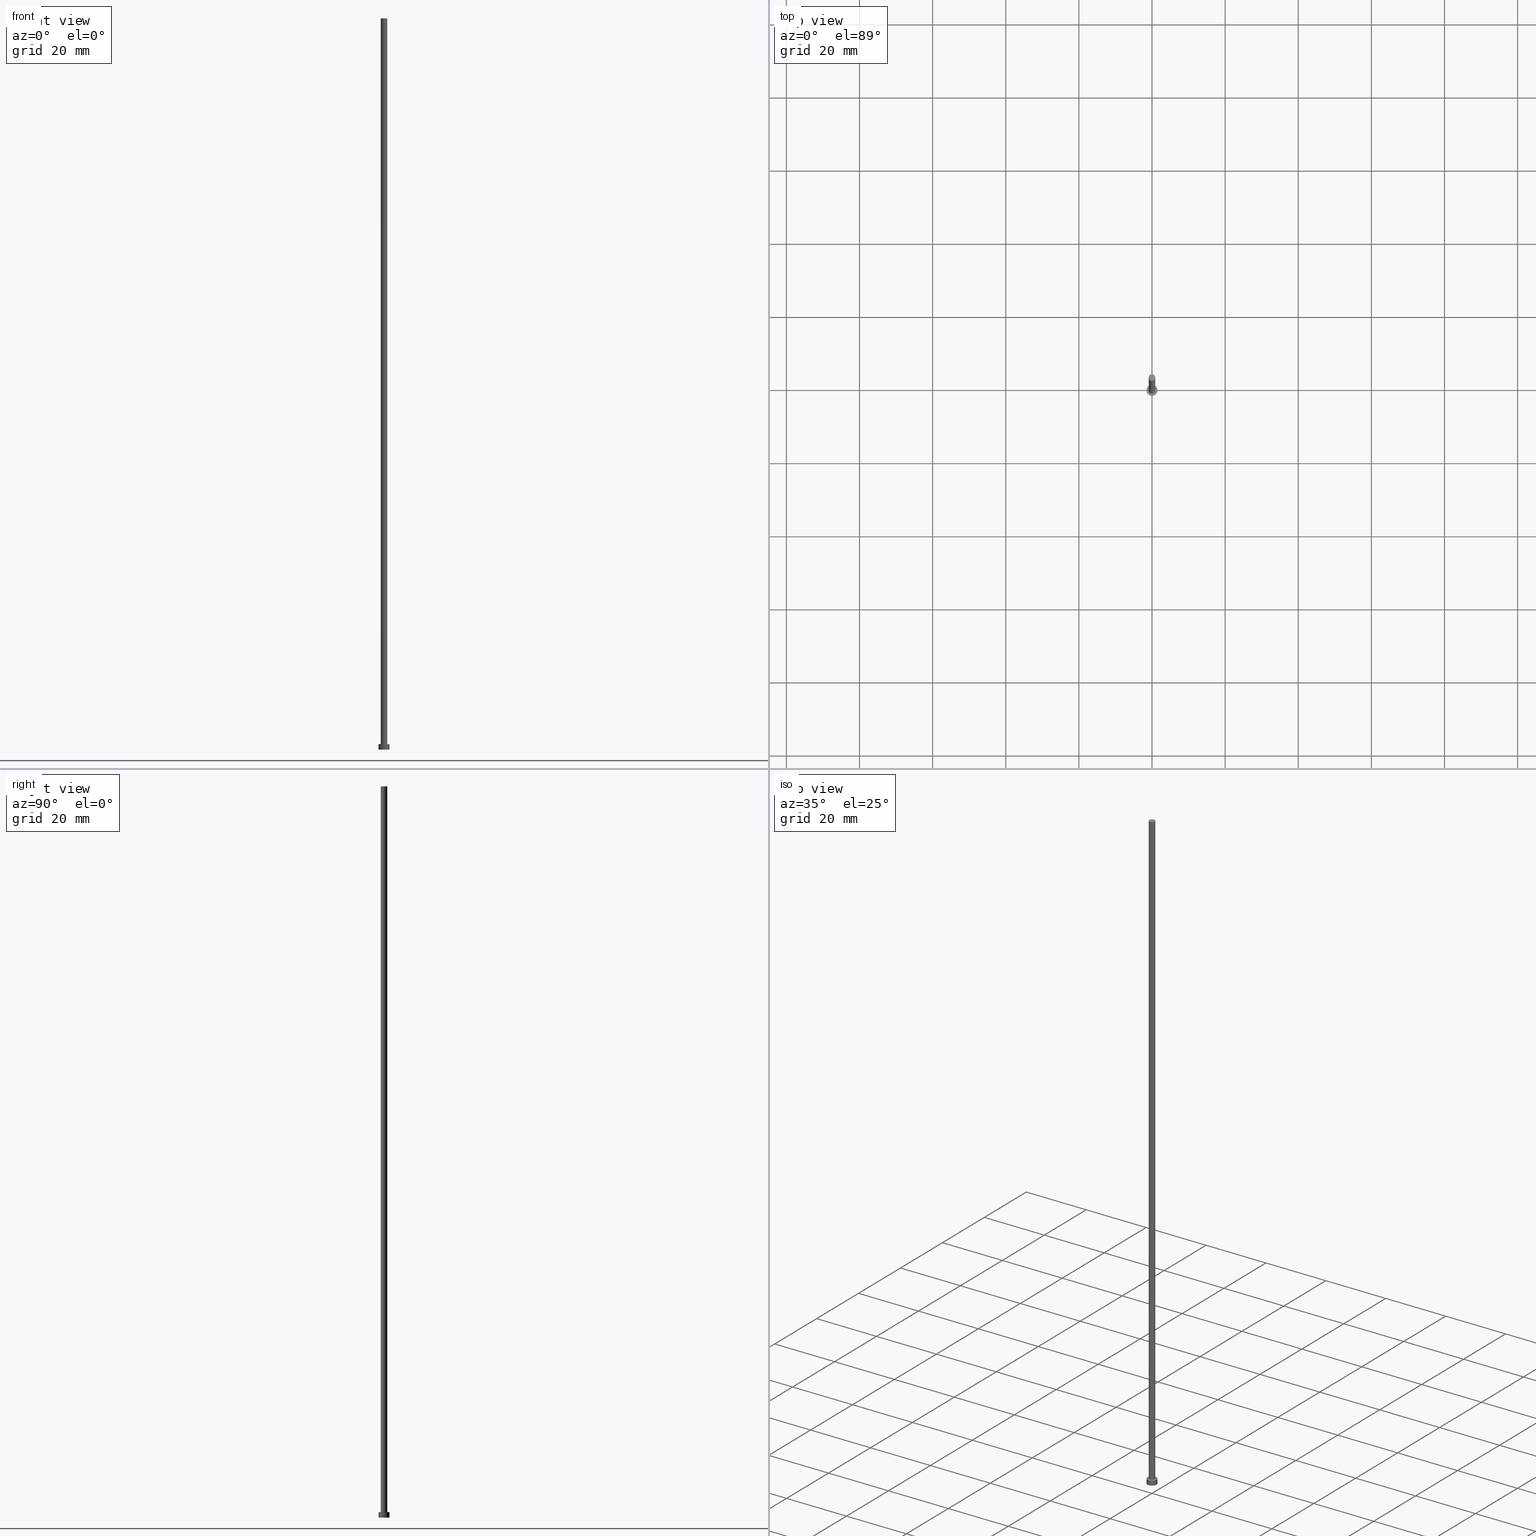
[diagram: canonical four-view strip — front | top / right | iso, engineering-drawing reading convention]
A machine part, canonical four-view strip (front | top / right | iso — engineering-drawing reading convention). The complete STEP part file that produces these views, byte-faithful:
ISO-10303-21;
HEADER;
FILE_DESCRIPTION (( 'STEP AP203' ),
    '1' );
FILE_NAME ('20dd.STEP',
    '2026-02-06T12:32:30',
    ( '' ),
    ( '' ),
    'SwSTEP 2.0',
    'SolidWorks 2019',
    '' );
FILE_SCHEMA (( 'CONFIG_CONTROL_DESIGN' ));
ENDSEC;

DATA;
#1 = PRODUCT_DEFINITION_SHAPE ( 'NONE', 'NONE',  #112 ) ;
#2 = CC_DESIGN_APPROVAL ( #170, ( #192 ) ) ;
#3 = ORIENTED_EDGE ( 'NONE', *, *, #47, .F. ) ;
#4 = FACE_OUTER_BOUND ( 'NONE', #202, .T. ) ;
#5 = ADVANCED_FACE ( 'NONE', ( #84 ), #27, .F. ) ;
#6 = EDGE_CURVE ( 'NONE', #22, #167, #35, .T. ) ;
#7 = ORIENTED_EDGE ( 'NONE', *, *, #244, .F. ) ;
#8 = DIRECTION ( 'NONE',  ( 0.000000000000000000, 0.000000000000000000, 1.000000000000000000 ) ) ;
#9 = DIRECTION ( 'NONE',  ( -0.000000000000000000, -0.000000000000000000, -1.000000000000000000 ) ) ;
#10 = CARTESIAN_POINT ( 'NONE',  ( -0.9000000000000000222, 0.000000000000000000, 1.500000000000000000 ) ) ;
#11 = AXIS2_PLACEMENT_3D ( 'NONE', #190, #90, #92 ) ;
#12 = AXIS2_PLACEMENT_3D ( 'NONE', #57, #175, #141 ) ;
#13 = AXIS2_PLACEMENT_3D ( 'NONE', #82, #63, #128 ) ;
#14 = APPROVAL_ROLE ( '' ) ;
#15 = CALENDAR_DATE ( 2026, 6, 2 ) ;
#16 = DIRECTION ( 'NONE',  ( -0.000000000000000000, -0.000000000000000000, -1.000000000000000000 ) ) ;
#17 = PERSON_AND_ORGANIZATION_ROLE ( 'classification_officer' ) ;
#18 = LINE ( 'NONE', #173, #107 ) ;
#19 = LINE ( 'NONE', #200, #21 ) ;
#20 = DIRECTION ( 'NONE',  ( 1.000000000000000000, 0.000000000000000000, 0.000000000000000000 ) ) ;
#21 = VECTOR ( 'NONE', #46, 1000.000000000000000 ) ;
#22 = VERTEX_POINT ( 'NONE', #45 ) ;
#23 = EDGE_LOOP ( 'NONE', ( #148, #58, #182, #40 ) ) ;
#24 = MANIFOLD_SOLID_BREP ( 'P�idat vysunut�m3', #149 ) ;
#25 = AXIS2_PLACEMENT_3D ( 'NONE', #165, #55, #74 ) ;
#26 = VERTEX_POINT ( 'NONE', #42 ) ;
#27 = PLANE ( 'NONE',  #13 ) ;
#28 = LOCAL_TIME ( 13, 32, 30.00000000000000000, #211 ) ;
#29 = LINE ( 'NONE', #109, #166 ) ;
#30 = DIRECTION ( 'NONE',  ( -0.000000000000000000, -0.000000000000000000, -1.000000000000000000 ) ) ;
#31 = CIRCLE ( 'NONE', #12, 1.500000000000000222 ) ;
#32 = DATE_AND_TIME ( #212, #79 ) ;
#33 = DATE_AND_TIME ( #245, #171 ) ;
#34 = APPLICATION_PROTOCOL_DEFINITION ( 'international standard', 'config_control_design', 1994, #110 ) ;
#35 = CIRCLE ( 'NONE', #89, 0.9000000000000000222 ) ;
#36 = DIRECTION ( 'NONE',  ( -0.000000000000000000, -0.000000000000000000, -1.000000000000000000 ) ) ;
#37 = ORIENTED_EDGE ( 'NONE', *, *, #69, .F. ) ;
#38 = APPROVAL ( #191, 'NEUR�EN�' ) ;
#39 = ORIENTED_EDGE ( 'NONE', *, *, #77, .F. ) ;
#40 = ORIENTED_EDGE ( 'NONE', *, *, #77, .T. ) ;
#41 = ORIENTED_EDGE ( 'NONE', *, *, #161, .F. ) ;
#42 = CARTESIAN_POINT ( 'NONE',  ( 1.500000000000000222, 1.836970198721030181E-16, 0.000000000000000000 ) ) ;
#43 = CARTESIAN_POINT ( 'NONE',  ( 0.000000000000000000, 0.000000000000000000, 1.500000000000000000 ) ) ;
#44 = ORIENTED_EDGE ( 'NONE', *, *, #247, .T. ) ;
#45 = CARTESIAN_POINT ( 'NONE',  ( 0.9000000000000000222, 1.102182119232617788E-16, 1.500000000000000000 ) ) ;
#46 = DIRECTION ( 'NONE',  ( -0.000000000000000000, -0.000000000000000000, -1.000000000000000000 ) ) ;
#47 = EDGE_CURVE ( 'NONE', #167, #22, #179, .T. ) ;
#48 = EDGE_CURVE ( 'NONE', #222, #145, #76, .T. ) ;
#49 = PERSON_AND_ORGANIZATION ( #229, #221 ) ;
#50 = PERSON_AND_ORGANIZATION ( #229, #221 ) ;
#51 = APPROVAL_STATUS ( 'not_yet_approved' ) ;
#52 = APPROVAL_DATE_TIME ( #154, #38 ) ;
#53 = PERSON_AND_ORGANIZATION_ROLE ( 'creator' ) ;
#54 = MECHANICAL_CONTEXT ( 'NONE', #110, 'mechanical' ) ;
#55 = DIRECTION ( 'NONE',  ( 0.000000000000000000, 0.000000000000000000, 1.000000000000000000 ) ) ;
#56 = CIRCLE ( 'NONE', #85, 0.9000000000000000222 ) ;
#57 = CARTESIAN_POINT ( 'NONE',  ( 0.000000000000000000, 0.000000000000000000, 0.000000000000000000 ) ) ;
#58 = ORIENTED_EDGE ( 'NONE', *, *, #247, .F. ) ;
#59 = CC_DESIGN_SECURITY_CLASSIFICATION ( #146, ( #192 ) ) ;
#60 = VERTEX_POINT ( 'NONE', #97 ) ;
#61 = ORIENTED_EDGE ( 'NONE', *, *, #183, .F. ) ;
#62 = CC_DESIGN_DATE_AND_TIME_ASSIGNMENT ( #33, #213, ( #146 ) ) ;
#63 = DIRECTION ( 'NONE',  ( 0.000000000000000000, 0.000000000000000000, 1.000000000000000000 ) ) ;
#64 = DIRECTION ( 'NONE',  ( 1.000000000000000000, 0.000000000000000000, -0.000000000000000000 ) ) ;
#65 =( LENGTH_UNIT ( ) NAMED_UNIT ( * ) SI_UNIT ( .MILLI., .METRE. ) );
#66 = PERSON_AND_ORGANIZATION_ROLE ( 'design_supplier' ) ;
#67 = PERSON_AND_ORGANIZATION ( #229, #221 ) ;
#68 = APPROVAL_DATE_TIME ( #174, #147 ) ;
#69 = EDGE_CURVE ( 'NONE', #120, #143, #204, .T. ) ;
#70 = APPROVAL_DATE_TIME ( #252, #170 ) ;
#71 = CARTESIAN_POINT ( 'NONE',  ( 0.000000000000000000, 0.000000000000000000, 0.000000000000000000 ) ) ;
#72 = CARTESIAN_POINT ( 'NONE',  ( 0.000000000000000000, 0.000000000000000000, 1.500000000000000000 ) ) ;
#73 = LOCAL_TIME ( 13, 32, 30.00000000000000000, #156 ) ;
#74 = DIRECTION ( 'NONE',  ( 1.000000000000000000, 0.000000000000000000, 0.000000000000000000 ) ) ;
#75 = PRODUCT_RELATED_PRODUCT_CATEGORY ( 'detail', '', ( #125 ) ) ;
#76 = CIRCLE ( 'NONE', #234, 1.500000000000000222 ) ;
#77 = EDGE_CURVE ( 'NONE', #60, #26, #31, .T. ) ;
#78 = ORIENTED_EDGE ( 'NONE', *, *, #244, .T. ) ;
#79 = LOCAL_TIME ( 13, 32, 30.00000000000000000, #138 ) ;
#80 = CIRCLE ( 'NONE', #11, 1.500000000000000222 ) ;
#81 = ORIENTED_EDGE ( 'NONE', *, *, #220, .T. ) ;
#82 = CARTESIAN_POINT ( 'NONE',  ( 0.000000000000000000, 0.000000000000000000, 0.000000000000000000 ) ) ;
#83 = CC_DESIGN_PERSON_AND_ORGANIZATION_ASSIGNMENT ( #50, #136, ( #192 ) ) ;
#84 = FACE_OUTER_BOUND ( 'NONE', #237, .T. ) ;
#85 = AXIS2_PLACEMENT_3D ( 'NONE', #169, #108, #186 ) ;
#86 = FACE_OUTER_BOUND ( 'NONE', #131, .T. ) ;
#87 = CARTESIAN_POINT ( 'NONE',  ( 0.000000000000000000, 0.000000000000000000, 200.0000000000000000 ) ) ;
#88 = CIRCLE ( 'NONE', #196, 1.500000000000000222 ) ;
#89 = AXIS2_PLACEMENT_3D ( 'NONE', #184, #8, #223 ) ;
#90 = DIRECTION ( 'NONE',  ( 0.000000000000000000, 0.000000000000000000, 1.000000000000000000 ) ) ;
#91 = ADVANCED_FACE ( 'NONE', ( #253 ), #215, .T. ) ;
#92 = DIRECTION ( 'NONE',  ( 1.000000000000000000, 0.000000000000000000, 0.000000000000000000 ) ) ;
#93 = AXIS2_PLACEMENT_3D ( 'NONE', #87, #243, #64 ) ;
#94 = DIRECTION ( 'NONE',  ( 0.000000000000000000, 0.000000000000000000, 1.000000000000000000 ) ) ;
#95 = DIRECTION ( 'NONE',  ( 0.000000000000000000, 0.000000000000000000, 1.000000000000000000 ) ) ;
#96 =( NAMED_UNIT ( * ) SI_UNIT ( $, .STERADIAN. ) SOLID_ANGLE_UNIT ( ) );
#97 = CARTESIAN_POINT ( 'NONE',  ( -1.500000000000000222, 0.000000000000000000, 0.000000000000000000 ) ) ;
#98 = CC_DESIGN_PERSON_AND_ORGANIZATION_ASSIGNMENT ( #228, #53, ( #112 ) ) ;
#99 = CARTESIAN_POINT ( 'NONE',  ( 0.000000000000000000, 0.000000000000000000, 200.0000000000000000 ) ) ;
#100 = ORIENTED_EDGE ( 'NONE', *, *, #48, .T. ) ;
#101 = EDGE_LOOP ( 'NONE', ( #41, #241, #217, #7 ) ) ;
#102 = LINE ( 'NONE', #181, #226 ) ;
#103 = DIRECTION ( 'NONE',  ( -0.000000000000000000, -0.000000000000000000, -1.000000000000000000 ) ) ;
#104 = ADVANCED_BREP_SHAPE_REPRESENTATION ( '20dd', ( #24, #150 ), #115 ) ;
#105 = ORIENTED_EDGE ( 'NONE', *, *, #6, .F. ) ;
#106 = ORIENTED_EDGE ( 'NONE', *, *, #69, .T. ) ;
#107 = VECTOR ( 'NONE', #231, 1000.000000000000000 ) ;
#108 = DIRECTION ( 'NONE',  ( 0.000000000000000000, 0.000000000000000000, 1.000000000000000000 ) ) ;
#109 = CARTESIAN_POINT ( 'NONE',  ( 1.500000000000000222, 1.836970198721030181E-16, 1.500000000000000000 ) ) ;
#110 = APPLICATION_CONTEXT ( 'configuration controlled 3d designs of mechanical parts and assemblies' ) ;
#111 = PERSON_AND_ORGANIZATION ( #229, #221 ) ;
#112 = PRODUCT_DEFINITION ( 'NEZN�M�', '', #192, #180 ) ;
#113 = PERSON_AND_ORGANIZATION ( #229, #221 ) ;
#114 = FACE_OUTER_BOUND ( 'NONE', #162, .T. ) ;
#115 =( GEOMETRIC_REPRESENTATION_CONTEXT ( 3 ) GLOBAL_UNCERTAINTY_ASSIGNED_CONTEXT ( ( #201 ) ) GLOBAL_UNIT_ASSIGNED_CONTEXT ( ( #65, #251, #96 ) ) REPRESENTATION_CONTEXT ( 'NONE', 'WORKASPACE' ) );
#116 = DATE_TIME_ROLE ( 'creation_date' ) ;
#117 = CARTESIAN_POINT ( 'NONE',  ( 0.000000000000000000, 0.000000000000000000, 0.000000000000000000 ) ) ;
#118 = CARTESIAN_POINT ( 'NONE',  ( -0.9000000000000000222, 0.000000000000000000, 200.0000000000000000 ) ) ;
#119 = ADVANCED_FACE ( 'NONE', ( #199 ), #214, .T. ) ;
#120 = VERTEX_POINT ( 'NONE', #118 ) ;
#121 = ORIENTED_EDGE ( 'NONE', *, *, #220, .F. ) ;
#122 = AXIS2_PLACEMENT_3D ( 'NONE', #255, #36, #158 ) ;
#123 = ORIENTED_EDGE ( 'NONE', *, *, #133, .T. ) ;
#124 = EDGE_CURVE ( 'NONE', #143, #22, #19, .T. ) ;
#125 = PRODUCT ( '20dd', '20dd', '', ( #54 ) ) ;
#126 = CC_DESIGN_APPROVAL ( #147, ( #112 ) ) ;
#127 = AXIS2_PLACEMENT_3D ( 'NONE', #246, #30, #250 ) ;
#128 = DIRECTION ( 'NONE',  ( 1.000000000000000000, 0.000000000000000000, -0.000000000000000000 ) ) ;
#129 = DIRECTION ( 'NONE',  ( 0.000000000000000000, 0.000000000000000000, 1.000000000000000000 ) ) ;
#130 = CC_DESIGN_PERSON_AND_ORGANIZATION_ASSIGNMENT ( #189, #17, ( #146 ) ) ;
#131 = EDGE_LOOP ( 'NONE', ( #106, #242 ) ) ;
#132 = CARTESIAN_POINT ( 'NONE',  ( 0.9000000000000000222, 1.102182119232617788E-16, 200.0000000000000000 ) ) ;
#133 = EDGE_CURVE ( 'NONE', #222, #26, #29, .T. ) ;
#134 = APPROVAL_STATUS ( 'not_yet_approved' ) ;
#135 = ADVANCED_FACE ( 'NONE', ( #86 ), #168, .T. ) ;
#136 = PERSON_AND_ORGANIZATION_ROLE ( 'creator' ) ;
#137 = COORDINATED_UNIVERSAL_TIME_OFFSET ( 1, 0, .AHEAD. ) ;
#138 = COORDINATED_UNIVERSAL_TIME_OFFSET ( 1, 0, .AHEAD. ) ;
#139 = LOCAL_TIME ( 13, 32, 30.00000000000000000, #137 ) ;
#140 = PERSON_AND_ORGANIZATION ( #229, #221 ) ;
#141 = DIRECTION ( 'NONE',  ( 1.000000000000000000, 0.000000000000000000, 0.000000000000000000 ) ) ;
#142 = DIRECTION ( 'NONE',  ( -1.000000000000000000, 0.000000000000000000, 0.000000000000000000 ) ) ;
#143 = VERTEX_POINT ( 'NONE', #132 ) ;
#144 = APPROVAL_PERSON_ORGANIZATION ( #140, #147, #14 ) ;
#145 = VERTEX_POINT ( 'NONE', #208 ) ;
#146 = SECURITY_CLASSIFICATION ( '', '', #194 ) ;
#147 = APPROVAL ( #51, 'NEUR�EN�' ) ;
#148 = ORIENTED_EDGE ( 'NONE', *, *, #133, .F. ) ;
#149 = CLOSED_SHELL ( 'NONE', ( #119, #238, #91, #187, #5, #206, #135 ) ) ;
#150 = AXIS2_PLACEMENT_3D ( 'NONE', #71, #94, #172 ) ;
#151 = APPROVAL_ROLE ( '' ) ;
#152 = CARTESIAN_POINT ( 'NONE',  ( 0.000000000000000000, 0.000000000000000000, 200.0000000000000000 ) ) ;
#153 = AXIS2_PLACEMENT_3D ( 'NONE', #72, #177, #142 ) ;
#154 = DATE_AND_TIME ( #15, #73 ) ;
#155 = PERSON_AND_ORGANIZATION_ROLE ( 'design_owner' ) ;
#156 = COORDINATED_UNIVERSAL_TIME_OFFSET ( 1, 0, .AHEAD. ) ;
#157 = DIRECTION ( 'NONE',  ( 1.000000000000000000, 0.000000000000000000, 0.000000000000000000 ) ) ;
#158 = DIRECTION ( 'NONE',  ( -1.000000000000000000, 0.000000000000000000, 0.000000000000000000 ) ) ;
#159 = AXIS2_PLACEMENT_3D ( 'NONE', #99, #95, #20 ) ;
#160 = ORIENTED_EDGE ( 'NONE', *, *, #48, .F. ) ;
#161 = EDGE_CURVE ( 'NONE', #143, #120, #56, .T. ) ;
#162 = EDGE_LOOP ( 'NONE', ( #160, #123, #81, #61 ) ) ;
#163 = ORIENTED_EDGE ( 'NONE', *, *, #124, .F. ) ;
#164 = PLANE ( 'NONE',  #185 ) ;
#165 = CARTESIAN_POINT ( 'NONE',  ( 0.000000000000000000, 0.000000000000000000, 1.500000000000000000 ) ) ;
#166 = VECTOR ( 'NONE', #9, 1000.000000000000000 ) ;
#167 = VERTEX_POINT ( 'NONE', #10 ) ;
#168 = PLANE ( 'NONE',  #93 ) ;
#169 = CARTESIAN_POINT ( 'NONE',  ( 0.000000000000000000, 0.000000000000000000, 200.0000000000000000 ) ) ;
#170 = APPROVAL ( #134, 'NEUR�EN�' ) ;
#171 = LOCAL_TIME ( 13, 32, 30.00000000000000000, #197 ) ;
#172 = DIRECTION ( 'NONE',  ( 1.000000000000000000, 0.000000000000000000, 0.000000000000000000 ) ) ;
#173 = CARTESIAN_POINT ( 'NONE',  ( -0.9000000000000000222, 0.000000000000000000, 200.0000000000000000 ) ) ;
#174 = DATE_AND_TIME ( #193, #139 ) ;
#175 = DIRECTION ( 'NONE',  ( 0.000000000000000000, 0.000000000000000000, 1.000000000000000000 ) ) ;
#176 = FACE_OUTER_BOUND ( 'NONE', #219, .T. ) ;
#177 = DIRECTION ( 'NONE',  ( -0.000000000000000000, -0.000000000000000000, -1.000000000000000000 ) ) ;
#178 = APPLICATION_CONTEXT ( 'configuration controlled 3d designs of mechanical parts and assemblies' ) ;
#179 = CIRCLE ( 'NONE', #25, 0.9000000000000000222 ) ;
#180 = DESIGN_CONTEXT ( 'detailed design', #178, 'design' ) ;
#181 = CARTESIAN_POINT ( 'NONE',  ( -1.500000000000000222, 0.000000000000000000, 1.500000000000000000 ) ) ;
#182 = ORIENTED_EDGE ( 'NONE', *, *, #183, .T. ) ;
#183 = EDGE_CURVE ( 'NONE', #145, #60, #102, .T. ) ;
#184 = CARTESIAN_POINT ( 'NONE',  ( 0.000000000000000000, 0.000000000000000000, 1.500000000000000000 ) ) ;
#185 = AXIS2_PLACEMENT_3D ( 'NONE', #43, #129, #205 ) ;
#186 = DIRECTION ( 'NONE',  ( 1.000000000000000000, 0.000000000000000000, 0.000000000000000000 ) ) ;
#187 = ADVANCED_FACE ( 'NONE', ( #239, #4 ), #164, .T. ) ;
#188 = CC_DESIGN_DATE_AND_TIME_ASSIGNMENT ( #32, #116, ( #112 ) ) ;
#189 = PERSON_AND_ORGANIZATION ( #229, #221 ) ;
#190 = CARTESIAN_POINT ( 'NONE',  ( 0.000000000000000000, 0.000000000000000000, 1.500000000000000000 ) ) ;
#191 = APPROVAL_STATUS ( 'not_yet_approved' ) ;
#192 = PRODUCT_DEFINITION_FORMATION_WITH_SPECIFIED_SOURCE ( 'LIBOVOLN�', '', #125, .NOT_KNOWN. ) ;
#193 = CALENDAR_DATE ( 2026, 6, 2 ) ;
#194 = SECURITY_CLASSIFICATION_LEVEL ( 'unclassified' ) ;
#195 = DIRECTION ( 'NONE',  ( 1.000000000000000000, 0.000000000000000000, 0.000000000000000000 ) ) ;
#196 = AXIS2_PLACEMENT_3D ( 'NONE', #117, #198, #195 ) ;
#197 = COORDINATED_UNIVERSAL_TIME_OFFSET ( 1, 0, .AHEAD. ) ;
#198 = DIRECTION ( 'NONE',  ( 0.000000000000000000, 0.000000000000000000, 1.000000000000000000 ) ) ;
#199 = FACE_OUTER_BOUND ( 'NONE', #101, .T. ) ;
#200 = CARTESIAN_POINT ( 'NONE',  ( 0.9000000000000000222, 1.102182119232617788E-16, 200.0000000000000000 ) ) ;
#201 = UNCERTAINTY_MEASURE_WITH_UNIT (LENGTH_MEASURE( 1.000000000000000082E-05 ), #65, 'distance_accuracy_value', 'NONE');
#202 = EDGE_LOOP ( 'NONE', ( #44, #100 ) ) ;
#203 = CC_DESIGN_APPROVAL ( #38, ( #146 ) ) ;
#204 = CIRCLE ( 'NONE', #159, 0.9000000000000000222 ) ;
#205 = DIRECTION ( 'NONE',  ( 1.000000000000000000, 0.000000000000000000, -0.000000000000000000 ) ) ;
#206 = ADVANCED_FACE ( 'NONE', ( #176 ), #249, .T. ) ;
#207 = ORIENTED_EDGE ( 'NONE', *, *, #47, .T. ) ;
#208 = CARTESIAN_POINT ( 'NONE',  ( -1.500000000000000222, 0.000000000000000000, 1.500000000000000000 ) ) ;
#209 = SHAPE_DEFINITION_REPRESENTATION ( #1, #104 ) ;
#210 = CYLINDRICAL_SURFACE ( 'NONE', #127, 1.500000000000000222 ) ;
#211 = COORDINATED_UNIVERSAL_TIME_OFFSET ( 1, 0, .AHEAD. ) ;
#212 = CALENDAR_DATE ( 2026, 6, 2 ) ;
#213 = DATE_TIME_ROLE ( 'classification_date' ) ;
#214 = CYLINDRICAL_SURFACE ( 'NONE', #122, 0.9000000000000000222 ) ;
#215 = CYLINDRICAL_SURFACE ( 'NONE', #153, 1.500000000000000222 ) ;
#216 = CC_DESIGN_PERSON_AND_ORGANIZATION_ASSIGNMENT ( #49, #66, ( #192 ) ) ;
#217 = ORIENTED_EDGE ( 'NONE', *, *, #6, .T. ) ;
#218 = AXIS2_PLACEMENT_3D ( 'NONE', #152, #16, #224 ) ;
#219 = EDGE_LOOP ( 'NONE', ( #163, #37, #78, #207 ) ) ;
#220 = EDGE_CURVE ( 'NONE', #26, #60, #88, .T. ) ;
#221 = ORGANIZATION ( 'NEUR�EN�', 'NEUR�EN�', '' ) ;
#222 = VERTEX_POINT ( 'NONE', #254 ) ;
#223 = DIRECTION ( 'NONE',  ( 1.000000000000000000, 0.000000000000000000, 0.000000000000000000 ) ) ;
#224 = DIRECTION ( 'NONE',  ( -1.000000000000000000, 0.000000000000000000, 0.000000000000000000 ) ) ;
#225 = APPLICATION_PROTOCOL_DEFINITION ( 'international standard', 'config_control_design', 1994, #178 ) ;
#226 = VECTOR ( 'NONE', #103, 1000.000000000000000 ) ;
#227 = APPROVAL_ROLE ( '' ) ;
#228 = PERSON_AND_ORGANIZATION ( #229, #221 ) ;
#229 = PERSON ( 'NEUR�EN�', 'NEUR�EN�', 'NEUR�EN�', ('NEUR�EN�'), ('NEUR�EN�'), ('NEUR�EN�') ) ;
#230 = DIRECTION ( 'NONE',  ( 0.000000000000000000, 0.000000000000000000, 1.000000000000000000 ) ) ;
#231 = DIRECTION ( 'NONE',  ( -0.000000000000000000, -0.000000000000000000, -1.000000000000000000 ) ) ;
#232 = CC_DESIGN_PERSON_AND_ORGANIZATION_ASSIGNMENT ( #111, #155, ( #125 ) ) ;
#233 = CARTESIAN_POINT ( 'NONE',  ( 0.000000000000000000, 0.000000000000000000, 1.500000000000000000 ) ) ;
#234 = AXIS2_PLACEMENT_3D ( 'NONE', #233, #230, #157 ) ;
#235 = EDGE_LOOP ( 'NONE', ( #3, #105 ) ) ;
#236 = APPROVAL_PERSON_ORGANIZATION ( #67, #170, #151 ) ;
#237 = EDGE_LOOP ( 'NONE', ( #39, #121 ) ) ;
#238 = ADVANCED_FACE ( 'NONE', ( #114 ), #210, .T. ) ;
#239 = FACE_BOUND ( 'NONE', #235, .T. ) ;
#240 = APPROVAL_PERSON_ORGANIZATION ( #113, #38, #227 ) ;
#241 = ORIENTED_EDGE ( 'NONE', *, *, #124, .T. ) ;
#242 = ORIENTED_EDGE ( 'NONE', *, *, #161, .T. ) ;
#243 = DIRECTION ( 'NONE',  ( 0.000000000000000000, 0.000000000000000000, 1.000000000000000000 ) ) ;
#244 = EDGE_CURVE ( 'NONE', #120, #167, #18, .T. ) ;
#245 = CALENDAR_DATE ( 2026, 6, 2 ) ;
#246 = CARTESIAN_POINT ( 'NONE',  ( 0.000000000000000000, 0.000000000000000000, 1.500000000000000000 ) ) ;
#247 = EDGE_CURVE ( 'NONE', #145, #222, #80, .T. ) ;
#248 = CALENDAR_DATE ( 2026, 6, 2 ) ;
#249 = CYLINDRICAL_SURFACE ( 'NONE', #218, 0.9000000000000000222 ) ;
#250 = DIRECTION ( 'NONE',  ( -1.000000000000000000, 0.000000000000000000, 0.000000000000000000 ) ) ;
#251 =( NAMED_UNIT ( * ) PLANE_ANGLE_UNIT ( ) SI_UNIT ( $, .RADIAN. ) );
#252 = DATE_AND_TIME ( #248, #28 ) ;
#253 = FACE_OUTER_BOUND ( 'NONE', #23, .T. ) ;
#254 = CARTESIAN_POINT ( 'NONE',  ( 1.500000000000000222, 1.836970198721030181E-16, 1.500000000000000000 ) ) ;
#255 = CARTESIAN_POINT ( 'NONE',  ( 0.000000000000000000, 0.000000000000000000, 200.0000000000000000 ) ) ;
ENDSEC;
END-ISO-10303-21;
